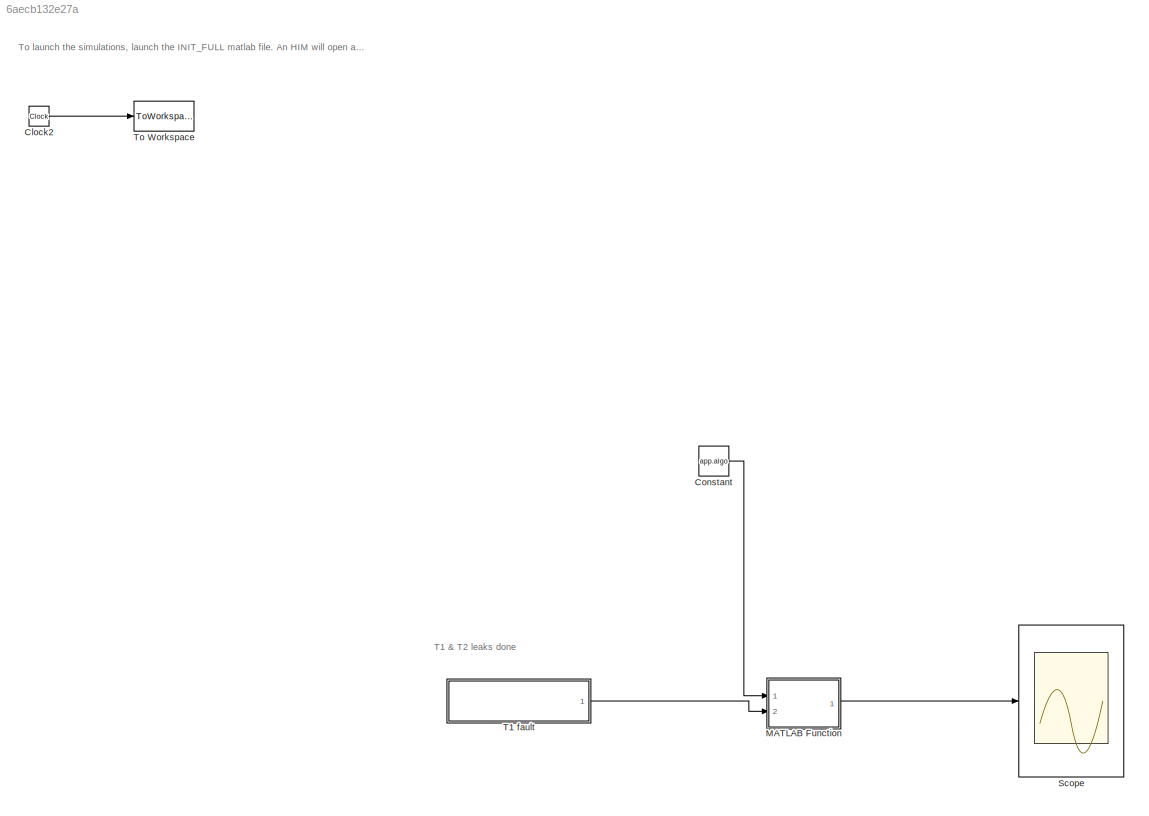
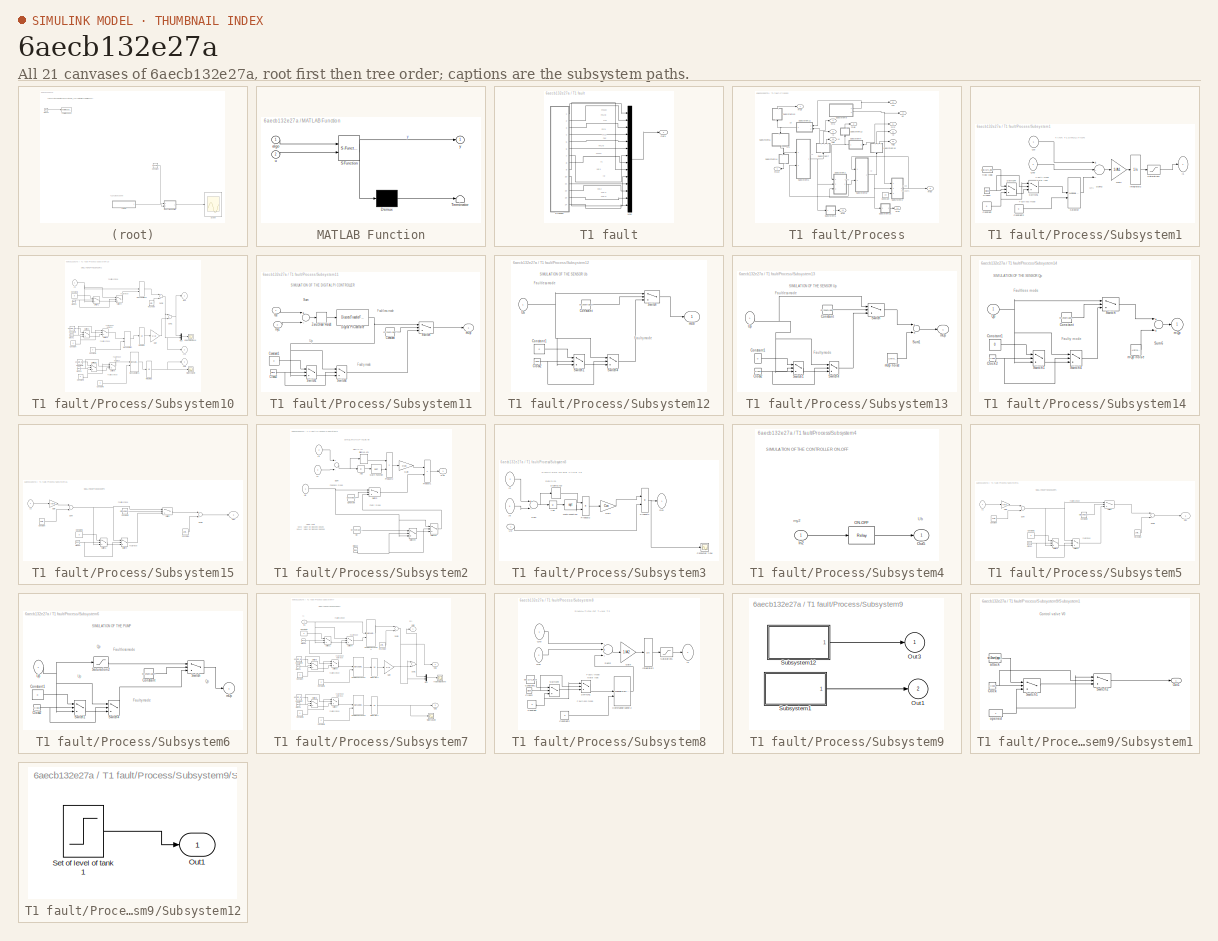
[diagram: thumbnail index - all 21 canvases of the model, root first then tree order]
MODEL slx_6aecb132e27a
KIND model
CONFIG AbsTol = auto
CONFIG EnableMultiTasking = on
CONFIG FixedStep = Te
CONFIG MaxStep = auto
CONFIG MinStep = auto
CONFIG RelTol = 1e-3
CONFIG SampleTimeConstraint = Unconstrained
CONFIG Solver = FixedStepAuto
CONFIG SolverName = FixedStepAuto
CONFIG StartTime = 0.0
CONFIG StopTime = app.SimuTime
BLOCK [Clock] Clock2
BLOCK [Constant] Constant
  Value = app.algo
BLOCK [SubSystem] MATLAB Function
  ErrorFcn = Stateflow.Translate.translate
  PermitHierarchicalResolution = ExplicitOnly
  Ports = [2, 1]
  RequestExecContextInheritance = off
  SFBlockType = MATLAB Function
  TreatAsAtomicUnit = on
BLOCK [Demux] MATLAB Function/ Demux 
  Outputs = 1
  Ports = [1, 1]
BLOCK [S-Function] MATLAB Function/ SFunction 
  EnableBusSupport = on
  FunctionName = sf_sfun
  PortCounts = [2 2]
  Ports = [2, 2]
  SFcnIsStateOwnerBlock = off
  SFunctionDeploymentMode = off
  Tag = Stateflow S-Function CHEM_FULL_BENCHMARK 1
BLOCK [Terminator] MATLAB Function/ Terminator 
BLOCK [Inport] MATLAB Function/algo
  IconDisplay = Port number
BLOCK [Inport] MATLAB Function/u
  IconDisplay = Port number
  Port = 2
BLOCK [Outport] MATLAB Function/y
  IconDisplay = Port number
BLOCK [Scope] Scope
  Floating = off
  NumInputPorts = 1
  Ports = [1]
  ScopeSpecificationString = Simulink.scopes.TimeScopeBlockCfg('CurrentConfiguration', extmgr.ConfigurationSet(extmgr.Configuration('Core','General UI',true),extmgr.Configuration('Core','Source UI',true),extmgr.Configuration('Sources','WiredSimulink',true,'DataLoggingVariableName','ScopeData1'),extmgr.Configuration('Visuals','Time Domain',true,'SerializedDisplays',{struct('MinYLimReal','-0.125','MaxYLimReal','1.125','YLabelRe...<+1417ch>
BLOCK [SubSystem] T1 fault
  Ports = [0, 1]
  RequestExecContextInheritance = off
BLOCK [Mux] T1 fault/Mux
  DisplayOption = bar
  Inputs = 14
  Ports = [14, 1]
BLOCK [Outport] T1 fault/Out1
  IconDisplay = Port number
BLOCK [SubSystem] T1 fault/Process
  Ports = [0, 14]
  RequestExecContextInheritance = off
  ShowPortLabels = none
BLOCK [Constant] T1 fault/Process/Constant
  Value = yo
BLOCK [SubSystem] T1 fault/Process/Subsystem1
  Ports = [2, 1]
  RequestExecContextInheritance = off
BLOCK [Clock] T1 fault/Process/Subsystem1/Clock2
BLOCK [Constant] T1 fault/Process/Subsystem1/Constant
  Value = 0
BLOCK [Constant] T1 fault/Process/Subsystem1/Constant2
  Value = 0
BLOCK [Gain] T1 fault/Process/Subsystem1/Gain
  Gain = 1/A1
BLOCK [Integrator] T1 fault/Process/Subsystem1/Integrator2
  InitialCondition = h1c_0
  Ports = [1, 1]
BLOCK [Inport] T1 fault/Process/Subsystem1/Qp
  IconDisplay = Port number
BLOCK [Inport] T1 fault/Process/Subsystem1/Qvb
  IconDisplay = Port number
  Port = 2
BLOCK [Saturate] T1 fault/Process/Subsystem1/Saturation1
  InputPortMap = u0
  LinearizeAsGain = off
  LowerLimit = 0
  Ports = [1, 1]
  UpperLimit = h1max
BLOCK [ManualSwitch] T1 fault/Process/Subsystem1/Selector
BLOCK [Sum] T1 fault/Process/Subsystem1/Sum2
  Inputs = +--
  Ports = [3, 1]
BLOCK [Switch] T1 fault/Process/Subsystem1/Switch1
  Threshold = app.Attack_endSlider.Value
BLOCK [Switch] T1 fault/Process/Subsystem1/Switch4
  Threshold = app.Attack_startSlider.Value
BLOCK [Constant] T1 fault/Process/Subsystem1/flow leak
  Value = app.Qf1_leak.Value/1000
BLOCK [Outport] T1 fault/Process/Subsystem1/y1
  IconDisplay = Port number
  InitialOutput = 0
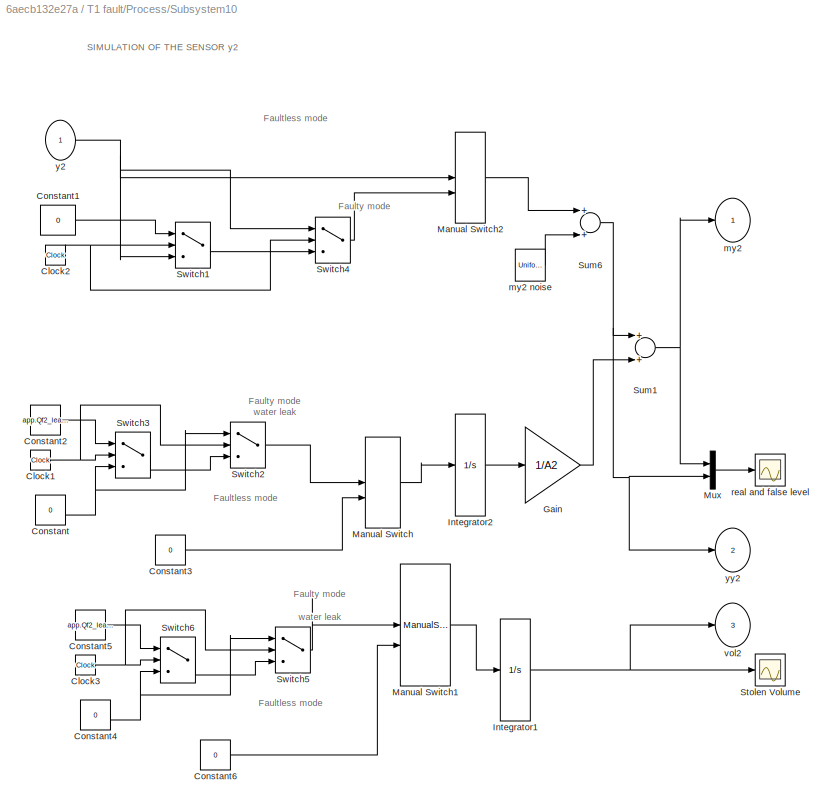
BLOCK [SubSystem] T1 fault/Process/Subsystem10
  Ports = [1, 3]
  RequestExecContextInheritance = off
BLOCK [Clock] T1 fault/Process/Subsystem10/Clock1
BLOCK [Clock] T1 fault/Process/Subsystem10/Clock2
BLOCK [Clock] T1 fault/Process/Subsystem10/Clock3
BLOCK [Constant] T1 fault/Process/Subsystem10/Constant
  Value = 0
BLOCK [Constant] T1 fault/Process/Subsystem10/Constant1
  Value = 0
BLOCK [Constant] T1 fault/Process/Subsystem10/Constant2
  Value = app.Qf2_leak.Value/1000
BLOCK [Constant] T1 fault/Process/Subsystem10/Constant3
  Value = 0
BLOCK [Constant] T1 fault/Process/Subsystem10/Constant4
  Value = 0
BLOCK [Constant] T1 fault/Process/Subsystem10/Constant5
  Value = app.Qf2_leak.Value/1000
BLOCK [Constant] T1 fault/Process/Subsystem10/Constant6
  Value = 0
BLOCK [Gain] T1 fault/Process/Subsystem10/Gain
  Gain = 1/A2
BLOCK [Integrator] T1 fault/Process/Subsystem10/Integrator1
  Ports = [1, 1]
BLOCK [Integrator] T1 fault/Process/Subsystem10/Integrator2
  Ports = [1, 1]
BLOCK [ManualSwitch] T1 fault/Process/Subsystem10/Manual Switch
  CurrentSetting = 0
BLOCK [ManualSwitch] T1 fault/Process/Subsystem10/Manual Switch1
  CurrentSetting = 0
BLOCK [ManualSwitch] T1 fault/Process/Subsystem10/Manual Switch2
BLOCK [Mux] T1 fault/Process/Subsystem10/Mux
  DisplayOption = bar
  Inputs = 2
  Ports = [2, 1]
BLOCK [Scope] T1 fault/Process/Subsystem10/Stolen Volume
  Floating = off
  NumInputPorts = 1
  Ports = [1]
  ScopeSpecificationString = Simulink.scopes.TimeScopeBlockCfg('CurrentConfiguration', extmgr.ConfigurationSet(extmgr.Configuration('Core','General UI',true),extmgr.Configuration('Core','Source UI',true),extmgr.Configuration('Sources','WiredSimulink',true,'DataLoggingVariableName','ScopeData2'),extmgr.Configuration('Visuals','Time Domain',true,'SerializedDisplays',{struct('MinYLimReal','-0.00005','MaxYLimReal','0.00045','YLab...<+1370ch>
BLOCK [Sum] T1 fault/Process/Subsystem10/Sum1
  Ports = [2, 1]
BLOCK [Sum] T1 fault/Process/Subsystem10/Sum6
  Ports = [2, 1]
BLOCK [Switch] T1 fault/Process/Subsystem10/Switch1
  Threshold = app.Attack_startSlider.Value
BLOCK [Switch] T1 fault/Process/Subsystem10/Switch2
  Threshold = app.Attack_endSlider.Value
BLOCK [Switch] T1 fault/Process/Subsystem10/Switch3
  Threshold = app.Attack_startSlider.Value
BLOCK [Switch] T1 fault/Process/Subsystem10/Switch4
  Threshold = app.Attack_endSlider.Value
BLOCK [Switch] T1 fault/Process/Subsystem10/Switch5
  Threshold = app.Attack_endSlider.Value
BLOCK [Switch] T1 fault/Process/Subsystem10/Switch6
  Threshold = app.Attack_startSlider.Value
BLOCK [Outport] T1 fault/Process/Subsystem10/my2
  IconDisplay = Port number
  InitialOutput = 0
BLOCK [UniformRandomNumber] T1 fault/Process/Subsystem10/my2 noise
  Maximum = rate_noise_my2
  Minimum = -rate_noise_my2
  SampleTime = 0
  Seed = seed
BLOCK [Scope] T1 fault/Process/Subsystem10/real and false level 
  Floating = off
  NumInputPorts = 1
  Ports = [1]
  ScopeSpecificationString = Simulink.scopes.TimeScopeBlockCfg('CurrentConfiguration', extmgr.ConfigurationSet(extmgr.Configuration('Core','General UI',true),extmgr.Configuration('Core','Source UI',true),extmgr.Configuration('Sources','WiredSimulink',true,'DataLoggingVariableName','ScopeData1'),extmgr.Configuration('Visuals','Time Domain',true,'SerializedDisplays',{struct('MinYLimReal','0.0163','MaxYLimReal','0.12101','YLabel...<+1364ch>
BLOCK [Outport] T1 fault/Process/Subsystem10/vol2
  IconDisplay = Port number
  InitialOutput = 0
  Port = 3
BLOCK [Inport] T1 fault/Process/Subsystem10/y2
  IconDisplay = Port number
BLOCK [Outport] T1 fault/Process/Subsystem10/yy2
  IconDisplay = Port number
  InitialOutput = 0
  Port = 2
BLOCK [SubSystem] T1 fault/Process/Subsystem11
  Ports = [2, 1]
  RequestExecContextInheritance = off
BLOCK [Clock] T1 fault/Process/Subsystem11/Clock2
BLOCK [Constant] T1 fault/Process/Subsystem11/Constant
  Value = str2num(app.PIControllerSwitch.Value)
BLOCK [Constant] T1 fault/Process/Subsystem11/Constant1
  Value = 0
BLOCK [DiscreteTransferFcn] T1 fault/Process/Subsystem11/Digital PIController
  Denominator = [1 -1]
  InputPortMap = u0
  Numerator = [(Ki*Te+Kp) -Kp]
  Ports = [1, 1]
BLOCK [Sum] T1 fault/Process/Subsystem11/Sum
  Inputs = +-
  Ports = [2, 1]
BLOCK [Switch] T1 fault/Process/Subsystem11/Switch
  Criteria = u2 > Threshold
  InputSameDT = off
  SaturateOnIntegerOverflow = off
BLOCK [Switch] T1 fault/Process/Subsystem11/Switch1
  Threshold = app.Attack_startSlider.Value
BLOCK [Switch] T1 fault/Process/Subsystem11/Switch4
  Threshold = app.Attack_endSlider.Value
BLOCK [ZeroOrderHold] T1 fault/Process/Subsystem11/Zero-Order Hold4
  SampleTime = -1
BLOCK [Inport] T1 fault/Process/Subsystem11/h1c
  IconDisplay = Port number
BLOCK [Outport] T1 fault/Process/Subsystem11/mUp
  IconDisplay = Port number
  InitialOutput = 0
BLOCK [Inport] T1 fault/Process/Subsystem11/my1
  IconDisplay = Port number
  Port = 2
BLOCK [SubSystem] T1 fault/Process/Subsystem12
  Ports = [1, 1]
  RequestExecContextInheritance = off
BLOCK [Clock] T1 fault/Process/Subsystem12/Clock2
BLOCK [Constant] T1 fault/Process/Subsystem12/Constant
  Value = str2num(app.SensorUbSwitch.Value)
BLOCK [Constant] T1 fault/Process/Subsystem12/Constant1
  Value = 0
BLOCK [Switch] T1 fault/Process/Subsystem12/Switch
  Criteria = u2 > Threshold
  InputSameDT = off
  SaturateOnIntegerOverflow = off
BLOCK [Switch] T1 fault/Process/Subsystem12/Switch1
  Threshold = app.Attack_startSlider.Value
BLOCK [Switch] T1 fault/Process/Subsystem12/Switch4
  Threshold = app.Attack_endSlider.Value
BLOCK [Inport] T1 fault/Process/Subsystem12/Ub
  IconDisplay = Port number
BLOCK [Outport] T1 fault/Process/Subsystem12/mUb
  IconDisplay = Port number
  InitialOutput = 0
BLOCK [SubSystem] T1 fault/Process/Subsystem13
  Ports = [1, 1]
  RequestExecContextInheritance = off
BLOCK [Clock] T1 fault/Process/Subsystem13/Clock2
BLOCK [Constant] T1 fault/Process/Subsystem13/Constant
  Value = str2num(app.SensorUpSwitch.Value)
BLOCK [Constant] T1 fault/Process/Subsystem13/Constant1
  Value = 0
BLOCK [Sum] T1 fault/Process/Subsystem13/Sum1
  Ports = [2, 1]
BLOCK [Switch] T1 fault/Process/Subsystem13/Switch
  Criteria = u2 > Threshold
  InputSameDT = off
  SaturateOnIntegerOverflow = off
BLOCK [Switch] T1 fault/Process/Subsystem13/Switch1
  Threshold = app.Attack_startSlider.Value
BLOCK [Switch] T1 fault/Process/Subsystem13/Switch4
  Threshold = app.Attack_endSlider.Value
BLOCK [Inport] T1 fault/Process/Subsystem13/Up
  IconDisplay = Port number
BLOCK [Outport] T1 fault/Process/Subsystem13/mUp
  IconDisplay = Port number
  InitialOutput = 0
BLOCK [UniformRandomNumber] T1 fault/Process/Subsystem13/mUp noise
  Maximum = rate_noise_mUp
  Minimum = -rate_noise_mUp
  SampleTime = 0
  Seed = seed
BLOCK [SubSystem] T1 fault/Process/Subsystem14
  Ports = [1, 1]
  RequestExecContextInheritance = off
BLOCK [Clock] T1 fault/Process/Subsystem14/Clock2
BLOCK [Constant] T1 fault/Process/Subsystem14/Constant
  Value = str2num(app.SensorQpSwitch.Value)
BLOCK [Constant] T1 fault/Process/Subsystem14/Constant1
  Value = 0
BLOCK [Inport] T1 fault/Process/Subsystem14/Qp
  IconDisplay = Port number
BLOCK [Sum] T1 fault/Process/Subsystem14/Sum6
  Ports = [2, 1]
BLOCK [Switch] T1 fault/Process/Subsystem14/Switch
  Criteria = u2 > Threshold
  InputSameDT = off
  SaturateOnIntegerOverflow = off
BLOCK [Switch] T1 fault/Process/Subsystem14/Switch1
  Threshold = app.Attack_startSlider.Value
BLOCK [Switch] T1 fault/Process/Subsystem14/Switch4
  Threshold = app.Attack_endSlider.Value
BLOCK [Outport] T1 fault/Process/Subsystem14/mQp
  IconDisplay = Port number
  InitialOutput = 0
BLOCK [UniformRandomNumber] T1 fault/Process/Subsystem14/mQp noise
  Maximum = rate_noise_mQp
  Minimum = -rate_noise_mQp
  SampleTime = 0
  Seed = seed
BLOCK [SubSystem] T1 fault/Process/Subsystem15
  Ports = [1, 1]
  RequestExecContextInheritance = off
BLOCK [Clock] T1 fault/Process/Subsystem15/Clock2
BLOCK [Constant] T1 fault/Process/Subsystem15/Constant
  Value = Patm
BLOCK [Constant] T1 fault/Process/Subsystem15/Constant1
  Value = 0
BLOCK [Constant] T1 fault/Process/Subsystem15/Constant2
  Value = str2num(app.SensorP2Switch.Value)
BLOCK [Gain] T1 fault/Process/Subsystem15/Gain
  Gain = ro*g
  OutDataTypeStr = Inherit: Inherit via internal rule
  ParamDataTypeStr = Inherit: Inherit via internal rule
  SaturateOnIntegerOverflow = off
BLOCK [Sum] T1 fault/Process/Subsystem15/Sum
  InputSameDT = off
  OutDataTypeStr = Inherit: Inherit via internal rule
  Ports = [2, 1]
  SaturateOnIntegerOverflow = off
BLOCK [Sum] T1 fault/Process/Subsystem15/Sum6
  Ports = [2, 1]
BLOCK [Switch] T1 fault/Process/Subsystem15/Switch
  Criteria = u2 > Threshold
  InputSameDT = off
  SaturateOnIntegerOverflow = off
BLOCK [Switch] T1 fault/Process/Subsystem15/Switch1
  Threshold = app.Attack_startSlider.Value
BLOCK [Switch] T1 fault/Process/Subsystem15/Switch4
  Threshold = app.Attack_endSlider.Value
BLOCK [Outport] T1 fault/Process/Subsystem15/mP2
  IconDisplay = Port number
  InitialOutput = 0
BLOCK [UniformRandomNumber] T1 fault/Process/Subsystem15/my1 noise
  Maximum = rate_noise_my1
  Minimum = -rate_noise_my1
  SampleTime = 0
  Seed = seed
BLOCK [Inport] T1 fault/Process/Subsystem15/y2
  IconDisplay = Port number
BLOCK [SubSystem] T1 fault/Process/Subsystem2
  Ports = [3, 1]
  RequestExecContextInheritance = off
BLOCK [Abs] T1 fault/Process/Subsystem2/Abs
BLOCK [Clock] T1 fault/Process/Subsystem2/Clock2
BLOCK [Constant] T1 fault/Process/Subsystem2/Constant
  Value = app.VbStuck
BLOCK [Gain] T1 fault/Process/Subsystem2/Gain
  Gain = Cvb
BLOCK [Math] T1 fault/Process/Subsystem2/Math Function
  Operator = sqrt
  Ports = [1, 1]
BLOCK [Product] T1 fault/Process/Subsystem2/Product1
  Ports = [2, 1]
  RndMeth = Floor
BLOCK [Product] T1 fault/Process/Subsystem2/Product2
  Ports = [2, 1]
  RndMeth = Floor
BLOCK [Outport] T1 fault/Process/Subsystem2/QVb
  IconDisplay = Port number
  InitialOutput = 0
BLOCK [Signum] T1 fault/Process/Subsystem2/Sign(x1-x2)
BLOCK [Sum] T1 fault/Process/Subsystem2/Sum
  Inputs = +-
  Ports = [2, 1]
BLOCK [Switch] T1 fault/Process/Subsystem2/Switch
  Criteria = u2 > Threshold
  InputSameDT = off
  SaturateOnIntegerOverflow = off
BLOCK [Switch] T1 fault/Process/Subsystem2/Switch1
  Threshold = app.Attack_endSlider.Value
BLOCK [Switch] T1 fault/Process/Subsystem2/Switch4
  Threshold = app.Attack_startSlider.Value
BLOCK [Inport] T1 fault/Process/Subsystem2/Ub
  IconDisplay = Port number
BLOCK [Constant] T1 fault/Process/Subsystem2/Vb
  Value = str2num(app.ValveVbSwitch.Value)
BLOCK [Inport] T1 fault/Process/Subsystem2/y1
  IconDisplay = Port number
  Port = 2
BLOCK [Inport] T1 fault/Process/Subsystem2/y2
  IconDisplay = Port number
  Port = 3
BLOCK [SubSystem] T1 fault/Process/Subsystem3
  Ports = [3, 1]
  RequestExecContextInheritance = off
BLOCK [Abs] T1 fault/Process/Subsystem3/Abs
BLOCK [Scope] T1 fault/Process/Subsystem3/Consumer flow
  Floating = off
  NumInputPorts = 1
  Ports = [1]
  ScopeSpecificationString = Simulink.scopes.TimeScopeBlockCfg('CurrentConfiguration', extmgr.ConfigurationSet(extmgr.Configuration('Core','General UI',true),extmgr.Configuration('Core','Source UI',true),extmgr.Configuration('Sources','WiredSimulink',true,'DataLoggingVariableName','ScopeData3'),extmgr.Configuration('Visuals','Time Domain',true,'SerializedDisplays',{struct('MinYLimReal','0.000023','MaxYLimReal','0.000056','YLa...<+1373ch>
BLOCK [Gain] T1 fault/Process/Subsystem3/Gain
  Gain = Cvo
BLOCK [Math] T1 fault/Process/Subsystem3/Math Function
  Operator = sqrt
  Ports = [1, 1]
BLOCK [Product] T1 fault/Process/Subsystem3/Product1
  Ports = [2, 1]
  RndMeth = Floor
BLOCK [Product] T1 fault/Process/Subsystem3/Product2
  Ports = [2, 1]
  RndMeth = Floor
BLOCK [Outport] T1 fault/Process/Subsystem3/Qv0
  IconDisplay = Port number
  InitialOutput = 0
BLOCK [Signum] T1 fault/Process/Subsystem3/Sign(x1-x2)
BLOCK [Sum] T1 fault/Process/Subsystem3/Sum
  Inputs = +-
  Ports = [2, 1]
BLOCK [Inport] T1 fault/Process/Subsystem3/U0
  IconDisplay = Port number
BLOCK [Inport] T1 fault/Process/Subsystem3/y0
  IconDisplay = Port number
  Port = 3
BLOCK [Inport] T1 fault/Process/Subsystem3/y2
  IconDisplay = Port number
  Port = 2
BLOCK [SubSystem] T1 fault/Process/Subsystem4
  Ports = [1, 1]
  RequestExecContextInheritance = off
BLOCK [Inport] T1 fault/Process/Subsystem4/In2
  IconDisplay = Port number
BLOCK [Relay] T1 fault/Process/Subsystem4/ON-OFF
  OffOutputValue = 1
  OffSwitchValue = h2c_min
  OnOutputValue = 0
  OnSwitchValue = h2c_max
BLOCK [Outport] T1 fault/Process/Subsystem4/Out5
  IconDisplay = Port number
  InitialOutput = 0
BLOCK [SubSystem] T1 fault/Process/Subsystem5
  Ports = [1, 1]
  RequestExecContextInheritance = off
BLOCK [Clock] T1 fault/Process/Subsystem5/Clock2
BLOCK [Constant] T1 fault/Process/Subsystem5/Constant
  Value = Patm
BLOCK [Constant] T1 fault/Process/Subsystem5/Constant1
  Value = 0
BLOCK [Constant] T1 fault/Process/Subsystem5/Constant2
  Value = str2num(app.SensorP1Switch.Value)
BLOCK [Gain] T1 fault/Process/Subsystem5/Gain
  Gain = ro*g
  OutDataTypeStr = Inherit: Inherit via internal rule
  ParamDataTypeStr = Inherit: Inherit via internal rule
  SaturateOnIntegerOverflow = off
BLOCK [Sum] T1 fault/Process/Subsystem5/Sum
  InputSameDT = off
  OutDataTypeStr = Inherit: Inherit via internal rule
  Ports = [2, 1]
  SaturateOnIntegerOverflow = off
BLOCK [Sum] T1 fault/Process/Subsystem5/Sum6
  Ports = [2, 1]
BLOCK [Switch] T1 fault/Process/Subsystem5/Switch
  Criteria = u2 > Threshold
  InputSameDT = off
  SaturateOnIntegerOverflow = off
BLOCK [Switch] T1 fault/Process/Subsystem5/Switch1
  Threshold = app.Attack_startSlider.Value
BLOCK [Switch] T1 fault/Process/Subsystem5/Switch4
  Threshold = app.Attack_endSlider.Value
BLOCK [Outport] T1 fault/Process/Subsystem5/mP1
  IconDisplay = Port number
  InitialOutput = 0
BLOCK [UniformRandomNumber] T1 fault/Process/Subsystem5/my1 noise
  Maximum = rate_noise_my1
  Minimum = -rate_noise_my1
  SampleTime = 0
  Seed = seed
BLOCK [Inport] T1 fault/Process/Subsystem5/y1
  IconDisplay = Port number
BLOCK [SubSystem] T1 fault/Process/Subsystem6
  Ports = [1, 1]
  RequestExecContextInheritance = off
BLOCK [Clock] T1 fault/Process/Subsystem6/Clock2
BLOCK [Constant] T1 fault/Process/Subsystem6/Constant
  Value = str2num(app.PumpSwitch.Value)
BLOCK [Constant] T1 fault/Process/Subsystem6/Constant1
  Value = 0
BLOCK [Saturate] T1 fault/Process/Subsystem6/Saturation2
  InputPortMap = u0
  LinearizeAsGain = off
  LowerLimit = 0
  Ports = [1, 1]
  UpperLimit = Qpmax
BLOCK [Switch] T1 fault/Process/Subsystem6/Switch
  Criteria = u2 > Threshold
  InputSameDT = off
  SaturateOnIntegerOverflow = off
BLOCK [Switch] T1 fault/Process/Subsystem6/Switch1
  Threshold = app.Attack_startSlider.Value
BLOCK [Switch] T1 fault/Process/Subsystem6/Switch4
  Threshold = app.Attack_endSlider.Value
BLOCK [Inport] T1 fault/Process/Subsystem6/Up
  IconDisplay = Port number
BLOCK [Outport] T1 fault/Process/Subsystem6/mUp
  IconDisplay = Port number
  InitialOutput = 0
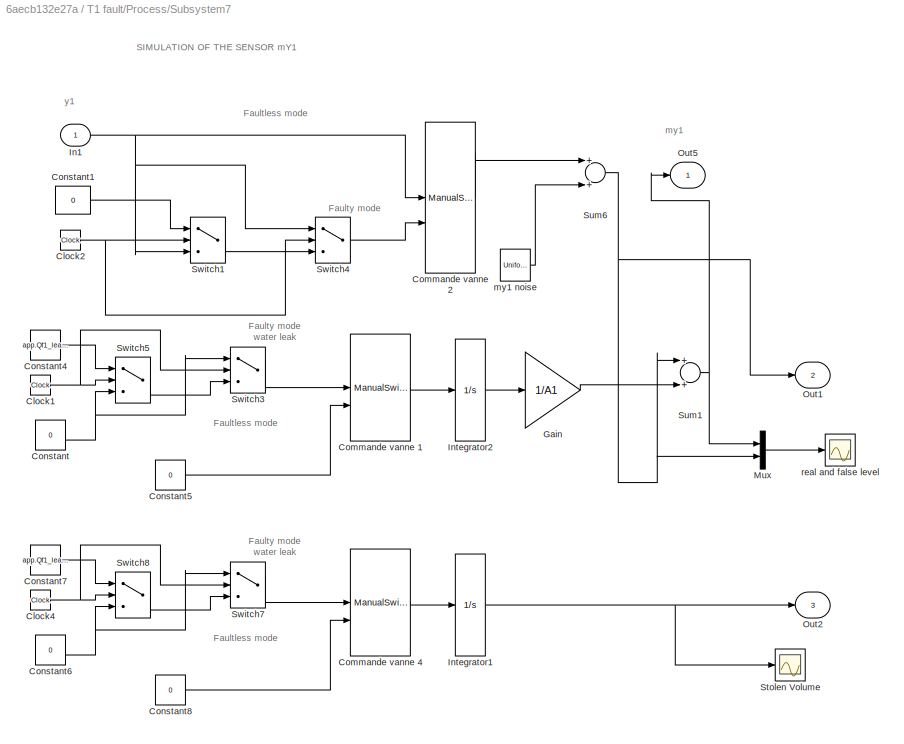
BLOCK [SubSystem] T1 fault/Process/Subsystem7
  Ports = [1, 3]
  RequestExecContextInheritance = off
BLOCK [Clock] T1 fault/Process/Subsystem7/Clock1
BLOCK [Clock] T1 fault/Process/Subsystem7/Clock2
BLOCK [Clock] T1 fault/Process/Subsystem7/Clock4
BLOCK [ManualSwitch] T1 fault/Process/Subsystem7/Commande vanne 1
BLOCK [ManualSwitch] T1 fault/Process/Subsystem7/Commande vanne 2
  CurrentSetting = 0
BLOCK [ManualSwitch] T1 fault/Process/Subsystem7/Commande vanne 4
BLOCK [Constant] T1 fault/Process/Subsystem7/Constant
  Value = 0
BLOCK [Constant] T1 fault/Process/Subsystem7/Constant1
  Value = 0
BLOCK [Constant] T1 fault/Process/Subsystem7/Constant4
  Value = app.Qf1_leak.Value/1000
BLOCK [Constant] T1 fault/Process/Subsystem7/Constant5
  Value = 0
BLOCK [Constant] T1 fault/Process/Subsystem7/Constant6
  Value = 0
BLOCK [Constant] T1 fault/Process/Subsystem7/Constant7
  Value = app.Qf1_leak.Value/1000
BLOCK [Constant] T1 fault/Process/Subsystem7/Constant8
  Value = 0
BLOCK [Gain] T1 fault/Process/Subsystem7/Gain
  Gain = 1/A1
BLOCK [Inport] T1 fault/Process/Subsystem7/In1
  IconDisplay = Port number
BLOCK [Integrator] T1 fault/Process/Subsystem7/Integrator1
  Ports = [1, 1]
BLOCK [Integrator] T1 fault/Process/Subsystem7/Integrator2
  Ports = [1, 1]
BLOCK [Mux] T1 fault/Process/Subsystem7/Mux
  DisplayOption = bar
  Inputs = 2
  Ports = [2, 1]
BLOCK [Outport] T1 fault/Process/Subsystem7/Out1
  IconDisplay = Port number
  InitialOutput = 0
  Port = 2
BLOCK [Outport] T1 fault/Process/Subsystem7/Out2
  IconDisplay = Port number
  InitialOutput = 0
  Port = 3
BLOCK [Outport] T1 fault/Process/Subsystem7/Out5
  IconDisplay = Port number
  InitialOutput = 0
BLOCK [Scope] T1 fault/Process/Subsystem7/Stolen Volume
  Floating = off
  NumInputPorts = 1
  Ports = [1]
  ScopeSpecificationString = Simulink.scopes.TimeScopeBlockCfg('CurrentConfiguration', extmgr.ConfigurationSet(extmgr.Configuration('Core','General UI',true),extmgr.Configuration('Core','Source UI',true),extmgr.Configuration('Sources','WiredSimulink',true,'DataLoggingVariableName','ScopeData1','DataLoggingLimitDataPoints',true,'DataLoggingSaveFormat','Array','DataLoggingDecimation','1','DataLoggingDecimateData',true),extmgr.C...<+165ch>
BLOCK [Sum] T1 fault/Process/Subsystem7/Sum1
  Ports = [2, 1]
BLOCK [Sum] T1 fault/Process/Subsystem7/Sum6
  Ports = [2, 1]
BLOCK [Switch] T1 fault/Process/Subsystem7/Switch1
  Threshold = app.Attack_startSlider.Value
BLOCK [Switch] T1 fault/Process/Subsystem7/Switch3
  Threshold = app.Attack_startSlider.Value
BLOCK [Switch] T1 fault/Process/Subsystem7/Switch4
  Threshold = app.Attack_startSlider.Value
BLOCK [Switch] T1 fault/Process/Subsystem7/Switch5
  Threshold = app.Attack_startSlider.Value
BLOCK [Switch] T1 fault/Process/Subsystem7/Switch7
  Threshold = 80
BLOCK [Switch] T1 fault/Process/Subsystem7/Switch8
  Threshold = 40
BLOCK [UniformRandomNumber] T1 fault/Process/Subsystem7/my1 noise
  Maximum = rate_noise_my1
  Minimum = -rate_noise_my1
  SampleTime = 0
  Seed = seed
BLOCK [Scope] T1 fault/Process/Subsystem7/real and false level 
  Floating = off
  NumInputPorts = 1
  Ports = [1]
  ScopeSpecificationString = Simulink.scopes.TimeScopeBlockCfg('CurrentConfiguration', extmgr.ConfigurationSet(extmgr.Configuration('Core','General UI',true),extmgr.Configuration('Core','Source UI',true),extmgr.Configuration('Sources','WiredSimulink',true,'DataLoggingVariableName','ScopeData2','DataLoggingLimitDataPoints',true,'DataLoggingSaveFormat','Array','DataLoggingDecimation','1','DataLoggingDecimateData',true),extmgr.C...<+165ch>
BLOCK [SubSystem] T1 fault/Process/Subsystem8
  Ports = [2, 1]
  RequestExecContextInheritance = off
BLOCK [Clock] T1 fault/Process/Subsystem8/Clock2
BLOCK [ManualSwitch] T1 fault/Process/Subsystem8/Commande vanne 2
BLOCK [Constant] T1 fault/Process/Subsystem8/Constant
  Value = 0
BLOCK [Constant] T1 fault/Process/Subsystem8/Constant1
  Value = app.Qf2_leak.Value/1000
BLOCK [Constant] T1 fault/Process/Subsystem8/Constant2
  Value = 0
BLOCK [Gain] T1 fault/Process/Subsystem8/Gain
  Gain = 1/A2
BLOCK [Integrator] T1 fault/Process/Subsystem8/Integrator2
  InitialCondition = h2c_0
  Ports = [1, 1]
BLOCK [Inport] T1 fault/Process/Subsystem8/Qvb
  IconDisplay = Port number
  Port = 2
BLOCK [Inport] T1 fault/Process/Subsystem8/Qvo
  IconDisplay = Port number
BLOCK [Saturate] T1 fault/Process/Subsystem8/Saturation1
  InputPortMap = u0
  LinearizeAsGain = off
  LowerLimit = 0
  Ports = [1, 1]
  UpperLimit = h2max
BLOCK [Sum] T1 fault/Process/Subsystem8/Sum2
  Inputs = -+-
  Ports = [3, 1]
BLOCK [Switch] T1 fault/Process/Subsystem8/Switch1
  Threshold = app.Attack_endSlider.Value
BLOCK [Switch] T1 fault/Process/Subsystem8/Switch4
  Threshold = app.Attack_startSlider.Value
BLOCK [Outport] T1 fault/Process/Subsystem8/y2
  IconDisplay = Port number
  InitialOutput = 0
BLOCK [SubSystem] T1 fault/Process/Subsystem9
  Ports = [0, 2]
  RequestExecContextInheritance = off
BLOCK [Outport] T1 fault/Process/Subsystem9/Out1
  IconDisplay = Port number
  InitialOutput = 0
  Port = 2
BLOCK [Outport] T1 fault/Process/Subsystem9/Out3
  IconDisplay = Port number
  InitialOutput = 0
BLOCK [SubSystem] T1 fault/Process/Subsystem9/Subsystem1
  Ports = [0, 1]
  RequestExecContextInheritance = off
BLOCK [Clock] T1 fault/Process/Subsystem9/Subsystem1/Clock
BLOCK [Outport] T1 fault/Process/Subsystem9/Subsystem1/Out1
  IconDisplay = Port number
  InitialOutput = 0
BLOCK [Switch] T1 fault/Process/Subsystem9/Subsystem1/Switch1
  Criteria = u2 > Threshold
  InputSameDT = off
  SaturateOnIntegerOverflow = off
  Threshold = app.Attack_startSlider.Value
BLOCK [Switch] T1 fault/Process/Subsystem9/Subsystem1/Switch2
  Criteria = u2 > Threshold
  InputSameDT = off
  SaturateOnIntegerOverflow = off
  Threshold = app.Attack_endSlider.Value
BLOCK [Constant] T1 fault/Process/Subsystem9/Subsystem1/attack
  Value = str2num(app.ValveV0Switch.Value)
BLOCK [Constant] T1 fault/Process/Subsystem9/Subsystem1/opened
BLOCK [SubSystem] T1 fault/Process/Subsystem9/Subsystem12
  Ports = [0, 1]
  RequestExecContextInheritance = off
BLOCK [Outport] T1 fault/Process/Subsystem9/Subsystem12/Out1
  IconDisplay = Port number
BLOCK [Step] T1 fault/Process/Subsystem9/Subsystem12/Set of level of tank 1 
  After = h1c
  Before = h1c_0
  SampleTime = 0
  Time = 0
BLOCK [Outport] T1 fault/Process/Uo 
  IconDisplay = Port number
  Port = 3
BLOCK [Outport] T1 fault/Process/h1c
  IconDisplay = Port number
  Port = 6
BLOCK [Outport] T1 fault/Process/mP1
  IconDisplay = Port number
  Port = 13
BLOCK [Outport] T1 fault/Process/mP2
  IconDisplay = Port number
  Port = 14
BLOCK [Outport] T1 fault/Process/mQp
  IconDisplay = Port number
BLOCK [Outport] T1 fault/Process/mUb
  IconDisplay = Port number
  Port = 2
BLOCK [Outport] T1 fault/Process/mUp
  IconDisplay = Port number
  Port = 7
BLOCK [Outport] T1 fault/Process/mq0
  IconDisplay = Port number
  Port = 8
BLOCK [Outport] T1 fault/Process/my1
  IconDisplay = Port number
  Port = 4
BLOCK [Outport] T1 fault/Process/my2
  IconDisplay = Port number
  Port = 5
BLOCK [Outport] T1 fault/Process/vol1
  IconDisplay = Port number
  Port = 10
BLOCK [Outport] T1 fault/Process/vol2
  IconDisplay = Port number
  Port = 12
BLOCK [Outport] T1 fault/Process/y1
  IconDisplay = Port number
  Port = 9
BLOCK [Outport] T1 fault/Process/y2
  IconDisplay = Port number
  Port = 11
BLOCK [ToWorkspace] To Workspace
  FixptAsFi = on
  MaxDataPoints = inf
  Ports = [1]
  SampleTime = -1
  VariableName = Time
ANNOTATION (root): To launch the simulations, launch the INIT_FULL matlab file. An HIM will open allowing you to make choices and observe results.
ANNOTATION (root): T1 & T2 leaks done
ANNOTATION T1 fault: Uo
ANNOTATION T1 fault: h1c
ANNOTATION T1 fault: mP1
ANNOTATION T1 fault: mP2
ANNOTATION T1 fault: mQ0
ANNOTATION T1 fault: mQp
ANNOTATION T1 fault: mUb
ANNOTATION T1 fault: mUp
ANNOTATION T1 fault: my1
ANNOTATION T1 fault: my2
ANNOTATION T1 fault: vol1
ANNOTATION T1 fault: vol2
ANNOTATION T1 fault: y1
ANNOTATION T1 fault: y2
ANNOTATION T1 fault/Process: Qp
ANNOTATION T1 fault/Process: Qvb
ANNOTATION T1 fault/Process: Qvo To users
ANNOTATION T1 fault/Process: Ub
ANNOTATION T1 fault/Process: Up
ANNOTATION T1 fault/Process: y1
ANNOTATION T1 fault/Process: y2
ANNOTATION T1 fault/Process/Subsystem1: Faultless mode
ANNOTATION T1 fault/Process/Subsystem1: Faulty mode water leak
ANNOTATION T1 fault/Process/Subsystem1: Qf1
ANNOTATION T1 fault/Process/Subsystem1: TANK T1 SIMULATION
ANNOTATION T1 fault/Process/Subsystem10: Faultless mode
ANNOTATION T1 fault/Process/Subsystem10: Faulty mode
ANNOTATION T1 fault/Process/Subsystem10: Faulty mode water leak
ANNOTATION T1 fault/Process/Subsystem10: SIMULATION OF THE SENSOR y2
ANNOTATION T1 fault/Process/Subsystem11: Faultless mode
ANNOTATION T1 fault/Process/Subsystem11: Faulty mode
ANNOTATION T1 fault/Process/Subsystem11: SIMULATION OF THE DIGITAL PI CONTROLLER
ANNOTATION T1 fault/Process/Subsystem11: Up
ANNOTATION T1 fault/Process/Subsystem12: Faultless mode
ANNOTATION T1 fault/Process/Subsystem12: Faulty mode
ANNOTATION T1 fault/Process/Subsystem12: SIMULATION OF THE SENSOR Ub
ANNOTATION T1 fault/Process/Subsystem13: Faultless mode
ANNOTATION T1 fault/Process/Subsystem13: Faulty mode
ANNOTATION T1 fault/Process/Subsystem13: SIMULATION OF THE SENSOR Up
ANNOTATION T1 fault/Process/Subsystem14: Faultless mode
ANNOTATION T1 fault/Process/Subsystem14: Faulty mode
ANNOTATION T1 fault/Process/Subsystem14: SIMULATION OF THE SENSOR Qp
ANNOTATION T1 fault/Process/Subsystem15: Faultless mode
ANNOTATION T1 fault/Process/Subsystem15: Faulty mode
ANNOTATION T1 fault/Process/Subsystem15: SIMULATION OF THE SENSOR P2
ANNOTATION T1 fault/Process/Subsystem2: Faultless mode
ANNOTATION T1 fault/Process/Subsystem2: Faulty mode
ANNOTATION T1 fault/Process/Subsystem2: SIMULATION OF VALVE Vb
ANNOTATION T1 fault/Process/Subsystem2: Valve fault Vb=0: Valve Vb blocked closed Vb1=1: Valve Vb blocked opened
ANNOTATION T1 fault/Process/Subsystem2: sign(y1-y2)
ANNOTATION T1 fault/Process/Subsystem3: SIMULATION OF THE VALVE Vo
ANNOTATION T1 fault/Process/Subsystem3: sign(y2-y0)
ANNOTATION T1 fault/Process/Subsystem4: SIMULATION OF THE CONTROLLER ON-OFF
ANNOTATION T1 fault/Process/Subsystem4: Ub
ANNOTATION T1 fault/Process/Subsystem4: my2
ANNOTATION T1 fault/Process/Subsystem5: Faultless mode
ANNOTATION T1 fault/Process/Subsystem5: Faulty mode
ANNOTATION T1 fault/Process/Subsystem5: SIMULATION OF THE SENSOR P1
ANNOTATION T1 fault/Process/Subsystem6: Faultless mode
ANNOTATION T1 fault/Process/Subsystem6: Faulty mode
ANNOTATION T1 fault/Process/Subsystem6: Qp
ANNOTATION T1 fault/Process/Subsystem6: SIMULATION OF THE PUMP
ANNOTATION T1 fault/Process/Subsystem6: Up
ANNOTATION T1 fault/Process/Subsystem7: Faultless mode
ANNOTATION T1 fault/Process/Subsystem7: Faulty mode
ANNOTATION T1 fault/Process/Subsystem7: Faulty mode water leak
ANNOTATION T1 fault/Process/Subsystem7: SIMULATION OF THE SENSOR mY1
ANNOTATION T1 fault/Process/Subsystem7: my1
ANNOTATION T1 fault/Process/Subsystem7: y1
ANNOTATION T1 fault/Process/Subsystem8: Faultless mode
ANNOTATION T1 fault/Process/Subsystem8: Faulty mode water leak
ANNOTATION T1 fault/Process/Subsystem8: SIMULATION OF TANK T2
ANNOTATION T1 fault/Process/Subsystem9/Subsystem1: Control valve V0
LINE Clock2:1 -> To Workspace:1
LINE Constant:1 -> MATLAB Function:1
LINE MATLAB Function:1 -> Scope:1
LINE T1 fault/Mux:1 -> T1 fault/Out1:1
LINE T1 fault/Process/Constant:1 -> T1 fault/Process/Subsystem3:3
NET T1 fault/Process/Subsystem1/Clock2:1 -> T1 fault/Process/Subsystem1/Switch1:2, T1 fault/Process/Subsystem1/Switch4:2
LINE T1 fault/Process/Subsystem1/Constant2:1 -> T1 fault/Process/Subsystem1/Selector:2
NET T1 fault/Process/Subsystem1/Constant:1 -> T1 fault/Process/Subsystem1/Switch1:1, T1 fault/Process/Subsystem1/Switch4:3
LINE T1 fault/Process/Subsystem1/Gain:1 -> T1 fault/Process/Subsystem1/Integrator2:1
LINE T1 fault/Process/Subsystem1/Integrator2:1 -> T1 fault/Process/Subsystem1/Saturation1:1
LINE T1 fault/Process/Subsystem1/Qp:1 -> T1 fault/Process/Subsystem1/Sum2:1
LINE T1 fault/Process/Subsystem1/Qvb:1 -> T1 fault/Process/Subsystem1/Sum2:2
LINE T1 fault/Process/Subsystem1/Saturation1:1 -> T1 fault/Process/Subsystem1/y1:1
LINE T1 fault/Process/Subsystem1/Selector:1 -> T1 fault/Process/Subsystem1/Sum2:3
LINE T1 fault/Process/Subsystem1/Sum2:1 -> T1 fault/Process/Subsystem1/Gain:1
LINE T1 fault/Process/Subsystem1/Switch1:1 -> T1 fault/Process/Subsystem1/Selector:1
LINE T1 fault/Process/Subsystem1/Switch4:1 -> T1 fault/Process/Subsystem1/Switch1:3
LINE T1 fault/Process/Subsystem1/flow leak:1 -> T1 fault/Process/Subsystem1/Switch4:1
NET T1 fault/Process/Subsystem10/Clock1:1 -> T1 fault/Process/Subsystem10/Switch2:2, T1 fault/Process/Subsystem10/Switch3:2
NET T1 fault/Process/Subsystem10/Clock2:1 -> T1 fault/Process/Subsystem10/Switch1:2, T1 fault/Process/Subsystem10/Switch4:2
NET T1 fault/Process/Subsystem10/Clock3:1 -> T1 fault/Process/Subsystem10/Switch5:2, T1 fault/Process/Subsystem10/Switch6:2
LINE T1 fault/Process/Subsystem10/Constant1:1 -> T1 fault/Process/Subsystem10/Switch1:1
LINE T1 fault/Process/Subsystem10/Constant2:1 -> T1 fault/Process/Subsystem10/Switch3:1
LINE T1 fault/Process/Subsystem10/Constant3:1 -> T1 fault/Process/Subsystem10/Manual Switch:2
NET T1 fault/Process/Subsystem10/Constant4:1 -> T1 fault/Process/Subsystem10/Switch5:1, T1 fault/Process/Subsystem10/Switch6:3
LINE T1 fault/Process/Subsystem10/Constant5:1 -> T1 fault/Process/Subsystem10/Switch6:1
LINE T1 fault/Process/Subsystem10/Constant6:1 -> T1 fault/Process/Subsystem10/Manual Switch1:2
NET T1 fault/Process/Subsystem10/Constant:1 -> T1 fault/Process/Subsystem10/Switch2:1, T1 fault/Process/Subsystem10/Switch3:3
LINE T1 fault/Process/Subsystem10/Gain:1 -> T1 fault/Process/Subsystem10/Sum1:2
NET T1 fault/Process/Subsystem10/Integrator1:1 -> T1 fault/Process/Subsystem10/Stolen Volume:1, T1 fault/Process/Subsystem10/vol2:1
LINE T1 fault/Process/Subsystem10/Integrator2:1 -> T1 fault/Process/Subsystem10/Gain:1
LINE T1 fault/Process/Subsystem10/Manual Switch1:1 -> T1 fault/Process/Subsystem10/Integrator1:1
LINE T1 fault/Process/Subsystem10/Manual Switch2:1 -> T1 fault/Process/Subsystem10/Sum6:1
LINE T1 fault/Process/Subsystem10/Manual Switch:1 -> T1 fault/Process/Subsystem10/Integrator2:1
LINE T1 fault/Process/Subsystem10/Mux:1 -> T1 fault/Process/Subsystem10/real and false level :1
NET T1 fault/Process/Subsystem10/Sum1:1 -> T1 fault/Process/Subsystem10/Mux:1, T1 fault/Process/Subsystem10/my2:1
NET T1 fault/Process/Subsystem10/Sum6:1 -> T1 fault/Process/Subsystem10/Mux:2, T1 fault/Process/Subsystem10/Sum1:1, T1 fault/Process/Subsystem10/yy2:1
LINE T1 fault/Process/Subsystem10/Switch1:1 -> T1 fault/Process/Subsystem10/Switch4:3
LINE T1 fault/Process/Subsystem10/Switch2:1 -> T1 fault/Process/Subsystem10/Manual Switch:1
LINE T1 fault/Process/Subsystem10/Switch3:1 -> T1 fault/Process/Subsystem10/Switch2:3
LINE T1 fault/Process/Subsystem10/Switch4:1 -> T1 fault/Process/Subsystem10/Manual Switch2:2
LINE T1 fault/Process/Subsystem10/Switch5:1 -> T1 fault/Process/Subsystem10/Manual Switch1:1
LINE T1 fault/Process/Subsystem10/Switch6:1 -> T1 fault/Process/Subsystem10/Switch5:3
LINE T1 fault/Process/Subsystem10/my2 noise:1 -> T1 fault/Process/Subsystem10/Sum6:2
NET T1 fault/Process/Subsystem10/y2:1 -> T1 fault/Process/Subsystem10/Manual Switch2:1, T1 fault/Process/Subsystem10/Switch1:3, T1 fault/Process/Subsystem10/Switch4:1
NET T1 fault/Process/Subsystem10:1 -> T1 fault/Process/Subsystem4:1, T1 fault/Process/my2:1
LINE T1 fault/Process/Subsystem10:2 -> T1 fault/Process/y2:1
LINE T1 fault/Process/Subsystem10:3 -> T1 fault/Process/vol2:1
NET T1 fault/Process/Subsystem11/Clock2:1 -> T1 fault/Process/Subsystem11/Switch1:2, T1 fault/Process/Subsystem11/Switch4:2
LINE T1 fault/Process/Subsystem11/Constant1:1 -> T1 fault/Process/Subsystem11/Switch1:1
LINE T1 fault/Process/Subsystem11/Constant:1 -> T1 fault/Process/Subsystem11/Switch:2
NET T1 fault/Process/Subsystem11/Digital PIController:1 -> T1 fault/Process/Subsystem11/Switch1:3, T1 fault/Process/Subsystem11/Switch4:1, T1 fault/Process/Subsystem11/Switch:1
LINE T1 fault/Process/Subsystem11/Sum:1 -> T1 fault/Process/Subsystem11/Zero-Order Hold4:1
LINE T1 fault/Process/Subsystem11/Switch1:1 -> T1 fault/Process/Subsystem11/Switch4:3
LINE T1 fault/Process/Subsystem11/Switch4:1 -> T1 fault/Process/Subsystem11/Switch:3
LINE T1 fault/Process/Subsystem11/Switch:1 -> T1 fault/Process/Subsystem11/mUp:1
LINE T1 fault/Process/Subsystem11/Zero-Order Hold4:1 -> T1 fault/Process/Subsystem11/Digital PIController:1
LINE T1 fault/Process/Subsystem11/h1c:1 -> T1 fault/Process/Subsystem11/Sum:1
LINE T1 fault/Process/Subsystem11/my1:1 -> T1 fault/Process/Subsystem11/Sum:2
NET T1 fault/Process/Subsystem11:1 -> T1 fault/Process/Subsystem13:1, T1 fault/Process/Subsystem6:1
NET T1 fault/Process/Subsystem12/Clock2:1 -> T1 fault/Process/Subsystem12/Switch1:2, T1 fault/Process/Subsystem12/Switch4:2
LINE T1 fault/Process/Subsystem12/Constant1:1 -> T1 fault/Process/Subsystem12/Switch1:1
LINE T1 fault/Process/Subsystem12/Constant:1 -> T1 fault/Process/Subsystem12/Switch:2
LINE T1 fault/Process/Subsystem12/Switch1:1 -> T1 fault/Process/Subsystem12/Switch4:3
LINE T1 fault/Process/Subsystem12/Switch4:1 -> T1 fault/Process/Subsystem12/Switch:3
LINE T1 fault/Process/Subsystem12/Switch:1 -> T1 fault/Process/Subsystem12/mUb:1
NET T1 fault/Process/Subsystem12/Ub:1 -> T1 fault/Process/Subsystem12/Switch1:3, T1 fault/Process/Subsystem12/Switch4:1, T1 fault/Process/Subsystem12/Switch:1
LINE T1 fault/Process/Subsystem12:1 -> T1 fault/Process/mUb:1
NET T1 fault/Process/Subsystem13/Clock2:1 -> T1 fault/Process/Subsystem13/Switch1:2, T1 fault/Process/Subsystem13/Switch4:2
LINE T1 fault/Process/Subsystem13/Constant1:1 -> T1 fault/Process/Subsystem13/Switch1:1
LINE T1 fault/Process/Subsystem13/Constant:1 -> T1 fault/Process/Subsystem13/Switch:2
LINE T1 fault/Process/Subsystem13/Sum1:1 -> T1 fault/Process/Subsystem13/mUp:1
LINE T1 fault/Process/Subsystem13/Switch1:1 -> T1 fault/Process/Subsystem13/Switch4:3
LINE T1 fault/Process/Subsystem13/Switch4:1 -> T1 fault/Process/Subsystem13/Switch:3
LINE T1 fault/Process/Subsystem13/Switch:1 -> T1 fault/Process/Subsystem13/Sum1:1
NET T1 fault/Process/Subsystem13/Up:1 -> T1 fault/Process/Subsystem13/Switch1:3, T1 fault/Process/Subsystem13/Switch4:1, T1 fault/Process/Subsystem13/Switch:1
LINE T1 fault/Process/Subsystem13/mUp noise:1 -> T1 fault/Process/Subsystem13/Sum1:2
LINE T1 fault/Process/Subsystem13:1 -> T1 fault/Process/mUp:1
NET T1 fault/Process/Subsystem14/Clock2:1 -> T1 fault/Process/Subsystem14/Switch1:2, T1 fault/Process/Subsystem14/Switch4:2
LINE T1 fault/Process/Subsystem14/Constant1:1 -> T1 fault/Process/Subsystem14/Switch1:1
LINE T1 fault/Process/Subsystem14/Constant:1 -> T1 fault/Process/Subsystem14/Switch:2
NET T1 fault/Process/Subsystem14/Qp:1 -> T1 fault/Process/Subsystem14/Switch1:3, T1 fault/Process/Subsystem14/Switch4:1, T1 fault/Process/Subsystem14/Switch:1
LINE T1 fault/Process/Subsystem14/Sum6:1 -> T1 fault/Process/Subsystem14/mQp:1
LINE T1 fault/Process/Subsystem14/Switch1:1 -> T1 fault/Process/Subsystem14/Switch4:3
LINE T1 fault/Process/Subsystem14/Switch4:1 -> T1 fault/Process/Subsystem14/Switch:3
LINE T1 fault/Process/Subsystem14/Switch:1 -> T1 fault/Process/Subsystem14/Sum6:1
LINE T1 fault/Process/Subsystem14/mQp noise:1 -> T1 fault/Process/Subsystem14/Sum6:2
LINE T1 fault/Process/Subsystem14:1 -> T1 fault/Process/mQp:1
NET T1 fault/Process/Subsystem15/Clock2:1 -> T1 fault/Process/Subsystem15/Switch1:2, T1 fault/Process/Subsystem15/Switch4:2
LINE T1 fault/Process/Subsystem15/Constant1:1 -> T1 fault/Process/Subsystem15/Switch1:1
LINE T1 fault/Process/Subsystem15/Constant2:1 -> T1 fault/Process/Subsystem15/Switch:2
LINE T1 fault/Process/Subsystem15/Constant:1 -> T1 fault/Process/Subsystem15/Sum:2
LINE T1 fault/Process/Subsystem15/Gain:1 -> T1 fault/Process/Subsystem15/Sum:1
LINE T1 fault/Process/Subsystem15/Sum6:1 -> T1 fault/Process/Subsystem15/mP2:1
NET T1 fault/Process/Subsystem15/Sum:1 -> T1 fault/Process/Subsystem15/Switch1:3, T1 fault/Process/Subsystem15/Switch4:1, T1 fault/Process/Subsystem15/Switch:1
LINE T1 fault/Process/Subsystem15/Switch1:1 -> T1 fault/Process/Subsystem15/Switch4:3
LINE T1 fault/Process/Subsystem15/Switch4:1 -> T1 fault/Process/Subsystem15/Switch:3
LINE T1 fault/Process/Subsystem15/Switch:1 -> T1 fault/Process/Subsystem15/Sum6:1
LINE T1 fault/Process/Subsystem15/my1 noise:1 -> T1 fault/Process/Subsystem15/Sum6:2
LINE T1 fault/Process/Subsystem15/y2:1 -> T1 fault/Process/Subsystem15/Gain:1
LINE T1 fault/Process/Subsystem15:1 -> T1 fault/Process/mP2:1
NET T1 fault/Process/Subsystem1:1 -> T1 fault/Process/Subsystem2:2, T1 fault/Process/Subsystem5:1, T1 fault/Process/Subsystem7:1
LINE T1 fault/Process/Subsystem2/Abs:1 -> T1 fault/Process/Subsystem2/Math Function:1
NET T1 fault/Process/Subsystem2/Clock2:1 -> T1 fault/Process/Subsystem2/Switch1:2, T1 fault/Process/Subsystem2/Switch4:2
LINE T1 fault/Process/Subsystem2/Constant:1 -> T1 fault/Process/Subsystem2/Switch:2
LINE T1 fault/Process/Subsystem2/Gain:1 -> T1 fault/Process/Subsystem2/Product1:1
LINE T1 fault/Process/Subsystem2/Math Function:1 -> T1 fault/Process/Subsystem2/Product2:2
LINE T1 fault/Process/Subsystem2/Product1:1 -> T1 fault/Process/Subsystem2/QVb:1
LINE T1 fault/Process/Subsystem2/Product2:1 -> T1 fault/Process/Subsystem2/Gain:1
LINE T1 fault/Process/Subsystem2/Sign(x1-x2):1 -> T1 fault/Process/Subsystem2/Product2:1
NET T1 fault/Process/Subsystem2/Sum:1 -> T1 fault/Process/Subsystem2/Abs:1, T1 fault/Process/Subsystem2/Sign(x1-x2):1
LINE T1 fault/Process/Subsystem2/Switch1:1 -> T1 fault/Process/Subsystem2/Switch:3
LINE T1 fault/Process/Subsystem2/Switch4:1 -> T1 fault/Process/Subsystem2/Switch1:3
LINE T1 fault/Process/Subsystem2/Switch:1 -> T1 fault/Process/Subsystem2/Product1:2
NET T1 fault/Process/Subsystem2/Ub:1 -> T1 fault/Process/Subsystem2/Switch1:1, T1 fault/Process/Subsystem2/Switch4:3, T1 fault/Process/Subsystem2/Switch:1
LINE T1 fault/Process/Subsystem2/Vb:1 -> T1 fault/Process/Subsystem2/Switch4:1
LINE T1 fault/Process/Subsystem2/y1:1 -> T1 fault/Process/Subsystem2/Sum:1
LINE T1 fault/Process/Subsystem2/y2:1 -> T1 fault/Process/Subsystem2/Sum:2
NET T1 fault/Process/Subsystem2:1 -> T1 fault/Process/Subsystem1:2, T1 fault/Process/Subsystem8:2
LINE T1 fault/Process/Subsystem3/Abs:1 -> T1 fault/Process/Subsystem3/Math Function:1
LINE T1 fault/Process/Subsystem3/Gain:1 -> T1 fault/Process/Subsystem3/Product1:1
LINE T1 fault/Process/Subsystem3/Math Function:1 -> T1 fault/Process/Subsystem3/Product2:2
NET T1 fault/Process/Subsystem3/Product1:1 -> T1 fault/Process/Subsystem3/Consumer flow:1, T1 fault/Process/Subsystem3/Qv0:1
LINE T1 fault/Process/Subsystem3/Product2:1 -> T1 fault/Process/Subsystem3/Gain:1
LINE T1 fault/Process/Subsystem3/Sign(x1-x2):1 -> T1 fault/Process/Subsystem3/Product2:1
NET T1 fault/Process/Subsystem3/Sum:1 -> T1 fault/Process/Subsystem3/Abs:1, T1 fault/Process/Subsystem3/Sign(x1-x2):1
LINE T1 fault/Process/Subsystem3/U0:1 -> T1 fault/Process/Subsystem3/Product1:2
LINE T1 fault/Process/Subsystem3/y0:1 -> T1 fault/Process/Subsystem3/Sum:2
LINE T1 fault/Process/Subsystem3/y2:1 -> T1 fault/Process/Subsystem3/Sum:1
NET T1 fault/Process/Subsystem3:1 -> T1 fault/Process/Subsystem8:1, T1 fault/Process/mq0:1
LINE T1 fault/Process/Subsystem4/In2:1 -> T1 fault/Process/Subsystem4/ON-OFF:1
LINE T1 fault/Process/Subsystem4/ON-OFF:1 -> T1 fault/Process/Subsystem4/Out5:1
NET T1 fault/Process/Subsystem4:1 -> T1 fault/Process/Subsystem12:1, T1 fault/Process/Subsystem2:1
NET T1 fault/Process/Subsystem5/Clock2:1 -> T1 fault/Process/Subsystem5/Switch1:2, T1 fault/Process/Subsystem5/Switch4:2
LINE T1 fault/Process/Subsystem5/Constant1:1 -> T1 fault/Process/Subsystem5/Switch1:1
LINE T1 fault/Process/Subsystem5/Constant2:1 -> T1 fault/Process/Subsystem5/Switch:2
LINE T1 fault/Process/Subsystem5/Constant:1 -> T1 fault/Process/Subsystem5/Sum:2
LINE T1 fault/Process/Subsystem5/Gain:1 -> T1 fault/Process/Subsystem5/Sum:1
LINE T1 fault/Process/Subsystem5/Sum6:1 -> T1 fault/Process/Subsystem5/mP1:1
NET T1 fault/Process/Subsystem5/Sum:1 -> T1 fault/Process/Subsystem5/Switch1:3, T1 fault/Process/Subsystem5/Switch4:1, T1 fault/Process/Subsystem5/Switch:1
LINE T1 fault/Process/Subsystem5/Switch1:1 -> T1 fault/Process/Subsystem5/Switch4:3
LINE T1 fault/Process/Subsystem5/Switch4:1 -> T1 fault/Process/Subsystem5/Switch:3
LINE T1 fault/Process/Subsystem5/Switch:1 -> T1 fault/Process/Subsystem5/Sum6:1
LINE T1 fault/Process/Subsystem5/my1 noise:1 -> T1 fault/Process/Subsystem5/Sum6:2
LINE T1 fault/Process/Subsystem5/y1:1 -> T1 fault/Process/Subsystem5/Gain:1
LINE T1 fault/Process/Subsystem5:1 -> T1 fault/Process/mP1:1
NET T1 fault/Process/Subsystem6/Clock2:1 -> T1 fault/Process/Subsystem6/Switch1:2, T1 fault/Process/Subsystem6/Switch4:2
LINE T1 fault/Process/Subsystem6/Constant1:1 -> T1 fault/Process/Subsystem6/Switch1:1
LINE T1 fault/Process/Subsystem6/Constant:1 -> T1 fault/Process/Subsystem6/Switch:2
LINE T1 fault/Process/Subsystem6/Saturation2:1 -> T1 fault/Process/Subsystem6/Switch:1
LINE T1 fault/Process/Subsystem6/Switch1:1 -> T1 fault/Process/Subsystem6/Switch4:3
LINE T1 fault/Process/Subsystem6/Switch4:1 -> T1 fault/Process/Subsystem6/Switch:3
LINE T1 fault/Process/Subsystem6/Switch:1 -> T1 fault/Process/Subsystem6/mUp:1
NET T1 fault/Process/Subsystem6/Up:1 -> T1 fault/Process/Subsystem6/Saturation2:1, T1 fault/Process/Subsystem6/Switch1:3, T1 fault/Process/Subsystem6/Switch4:1
NET T1 fault/Process/Subsystem6:1 -> T1 fault/Process/Subsystem14:1, T1 fault/Process/Subsystem1:1
NET T1 fault/Process/Subsystem7/Clock1:1 -> T1 fault/Process/Subsystem7/Switch3:2, T1 fault/Process/Subsystem7/Switch5:2
NET T1 fault/Process/Subsystem7/Clock2:1 -> T1 fault/Process/Subsystem7/Switch1:2, T1 fault/Process/Subsystem7/Switch4:2
NET T1 fault/Process/Subsystem7/Clock4:1 -> T1 fault/Process/Subsystem7/Switch7:2, T1 fault/Process/Subsystem7/Switch8:2
LINE T1 fault/Process/Subsystem7/Commande vanne 1:1 -> T1 fault/Process/Subsystem7/Integrator2:1
LINE T1 fault/Process/Subsystem7/Commande vanne 2:1 -> T1 fault/Process/Subsystem7/Sum6:1
LINE T1 fault/Process/Subsystem7/Commande vanne 4:1 -> T1 fault/Process/Subsystem7/Integrator1:1
LINE T1 fault/Process/Subsystem7/Constant1:1 -> T1 fault/Process/Subsystem7/Switch1:1
LINE T1 fault/Process/Subsystem7/Constant4:1 -> T1 fault/Process/Subsystem7/Switch5:1
LINE T1 fault/Process/Subsystem7/Constant5:1 -> T1 fault/Process/Subsystem7/Commande vanne 1:2
NET T1 fault/Process/Subsystem7/Constant6:1 -> T1 fault/Process/Subsystem7/Switch7:1, T1 fault/Process/Subsystem7/Switch8:3
LINE T1 fault/Process/Subsystem7/Constant7:1 -> T1 fault/Process/Subsystem7/Switch8:1
LINE T1 fault/Process/Subsystem7/Constant8:1 -> T1 fault/Process/Subsystem7/Commande vanne 4:2
NET T1 fault/Process/Subsystem7/Constant:1 -> T1 fault/Process/Subsystem7/Switch3:1, T1 fault/Process/Subsystem7/Switch5:3
LINE T1 fault/Process/Subsystem7/Gain:1 -> T1 fault/Process/Subsystem7/Sum1:2
NET T1 fault/Process/Subsystem7/In1:1 -> T1 fault/Process/Subsystem7/Commande vanne 2:1, T1 fault/Process/Subsystem7/Switch1:3, T1 fault/Process/Subsystem7/Switch4:1
NET T1 fault/Process/Subsystem7/Integrator1:1 -> T1 fault/Process/Subsystem7/Out2:1, T1 fault/Process/Subsystem7/Stolen Volume:1
LINE T1 fault/Process/Subsystem7/Integrator2:1 -> T1 fault/Process/Subsystem7/Gain:1
LINE T1 fault/Process/Subsystem7/Mux:1 -> T1 fault/Process/Subsystem7/real and false level :1
NET T1 fault/Process/Subsystem7/Sum1:1 -> T1 fault/Process/Subsystem7/Mux:1, T1 fault/Process/Subsystem7/Out5:1
NET T1 fault/Process/Subsystem7/Sum6:1 -> T1 fault/Process/Subsystem7/Mux:2, T1 fault/Process/Subsystem7/Out1:1, T1 fault/Process/Subsystem7/Sum1:1
LINE T1 fault/Process/Subsystem7/Switch1:1 -> T1 fault/Process/Subsystem7/Switch4:3
LINE T1 fault/Process/Subsystem7/Switch3:1 -> T1 fault/Process/Subsystem7/Commande vanne 1:1
LINE T1 fault/Process/Subsystem7/Switch4:1 -> T1 fault/Process/Subsystem7/Commande vanne 2:2
LINE T1 fault/Process/Subsystem7/Switch5:1 -> T1 fault/Process/Subsystem7/Switch3:3
LINE T1 fault/Process/Subsystem7/Switch7:1 -> T1 fault/Process/Subsystem7/Commande vanne 4:1
LINE T1 fault/Process/Subsystem7/Switch8:1 -> T1 fault/Process/Subsystem7/Switch7:3
LINE T1 fault/Process/Subsystem7/my1 noise:1 -> T1 fault/Process/Subsystem7/Sum6:2
NET T1 fault/Process/Subsystem7:1 -> T1 fault/Process/Subsystem11:2, T1 fault/Process/my1:1
LINE T1 fault/Process/Subsystem7:2 -> T1 fault/Process/y1:1
LINE T1 fault/Process/Subsystem7:3 -> T1 fault/Process/vol1:1
NET T1 fault/Process/Subsystem8/Clock2:1 -> T1 fault/Process/Subsystem8/Switch1:2, T1 fault/Process/Subsystem8/Switch4:2
LINE T1 fault/Process/Subsystem8/Commande vanne 2:1 -> T1 fault/Process/Subsystem8/Sum2:3
LINE T1 fault/Process/Subsystem8/Constant1:1 -> T1 fault/Process/Subsystem8/Switch4:1
LINE T1 fault/Process/Subsystem8/Constant2:1 -> T1 fault/Process/Subsystem8/Commande vanne 2:2
NET T1 fault/Process/Subsystem8/Constant:1 -> T1 fault/Process/Subsystem8/Switch1:1, T1 fault/Process/Subsystem8/Switch4:3
LINE T1 fault/Process/Subsystem8/Gain:1 -> T1 fault/Process/Subsystem8/Integrator2:1
LINE T1 fault/Process/Subsystem8/Integrator2:1 -> T1 fault/Process/Subsystem8/Saturation1:1
LINE T1 fault/Process/Subsystem8/Qvb:1 -> T1 fault/Process/Subsystem8/Sum2:2
LINE T1 fault/Process/Subsystem8/Qvo:1 -> T1 fault/Process/Subsystem8/Sum2:1
LINE T1 fault/Process/Subsystem8/Saturation1:1 -> T1 fault/Process/Subsystem8/y2:1
LINE T1 fault/Process/Subsystem8/Sum2:1 -> T1 fault/Process/Subsystem8/Gain:1
LINE T1 fault/Process/Subsystem8/Switch1:1 -> T1 fault/Process/Subsystem8/Commande vanne 2:1
LINE T1 fault/Process/Subsystem8/Switch4:1 -> T1 fault/Process/Subsystem8/Switch1:3
NET T1 fault/Process/Subsystem8:1 -> T1 fault/Process/Subsystem10:1, T1 fault/Process/Subsystem15:1, T1 fault/Process/Subsystem2:3, T1 fault/Process/Subsystem3:2
NET T1 fault/Process/Subsystem9/Subsystem1/Clock:1 -> T1 fault/Process/Subsystem9/Subsystem1/Switch1:2, T1 fault/Process/Subsystem9/Subsystem1/Switch2:2
LINE T1 fault/Process/Subsystem9/Subsystem1/Switch1:1 -> T1 fault/Process/Subsystem9/Subsystem1/Switch2:3
LINE T1 fault/Process/Subsystem9/Subsystem1/Switch2:1 -> T1 fault/Process/Subsystem9/Subsystem1/Out1:1
LINE T1 fault/Process/Subsystem9/Subsystem1/attack:1 -> T1 fault/Process/Subsystem9/Subsystem1/Switch1:1
NET T1 fault/Process/Subsystem9/Subsystem1/opened:1 -> T1 fault/Process/Subsystem9/Subsystem1/Switch1:3, T1 fault/Process/Subsystem9/Subsystem1/Switch2:1
LINE T1 fault/Process/Subsystem9/Subsystem12/Set of level of tank 1 :1 -> T1 fault/Process/Subsystem9/Subsystem12/Out1:1
LINE T1 fault/Process/Subsystem9/Subsystem12:1 -> T1 fault/Process/Subsystem9/Out3:1
LINE T1 fault/Process/Subsystem9/Subsystem1:1 -> T1 fault/Process/Subsystem9/Out1:1
NET T1 fault/Process/Subsystem9:1 -> T1 fault/Process/Subsystem11:1, T1 fault/Process/h1c:1
NET T1 fault/Process/Subsystem9:2 -> T1 fault/Process/Subsystem3:1, T1 fault/Process/Uo :1
LINE T1 fault/Process:1 -> T1 fault/Mux:1
LINE T1 fault/Process:10 -> T1 fault/Mux:10
LINE T1 fault/Process:11 -> T1 fault/Mux:11
LINE T1 fault/Process:12 -> T1 fault/Mux:12
LINE T1 fault/Process:13 -> T1 fault/Mux:13
LINE T1 fault/Process:14 -> T1 fault/Mux:14
LINE T1 fault/Process:2 -> T1 fault/Mux:2
LINE T1 fault/Process:3 -> T1 fault/Mux:3
LINE T1 fault/Process:4 -> T1 fault/Mux:4
LINE T1 fault/Process:5 -> T1 fault/Mux:5
LINE T1 fault/Process:6 -> T1 fault/Mux:6
LINE T1 fault/Process:7 -> T1 fault/Mux:7
LINE T1 fault/Process:8 -> T1 fault/Mux:8
LINE T1 fault/Process:9 -> T1 fault/Mux:9
LINE T1 fault:1 -> MATLAB Function:2
note: NET lines group one-source signal fan-out (src -> all destinations, sorted); 1:1 wires keep LINE
CHART MATLAB Function states=1 transitions=1
  STATE_LABEL 'eML_blk_kernel()'
  STATE_LABEL "SCRIPT:\nfunction y = fcn(algo, u)\n\ny1=u(4,:);\ny2=u(5,:);\ny3=u(1,:);\ny4=u(1,:);\ny5=u(3,:);\ny6=u(2,:);\npersistent knn; \npersistent ensemble;\npersistent tree;\nif isempty(knn) \n   knn = loadCompactModel('ml/knn');\n   ensemble = loadCompactModel('ml/ensemble');\n   tree = loadCompactModel('ml/tree');\nend\nif algo == 1\npred = predict(knn,[y1,y2,y3,y4,y5,y6]);\nelse\n    if algo == 2\n        pred = predict(e...<+111ch>"
